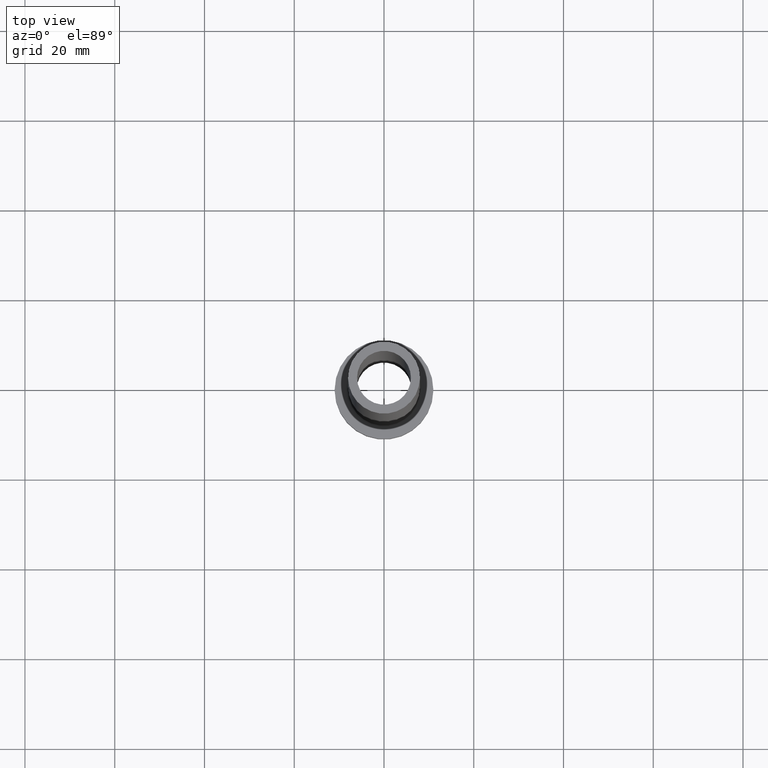
[diagram: clean part render]
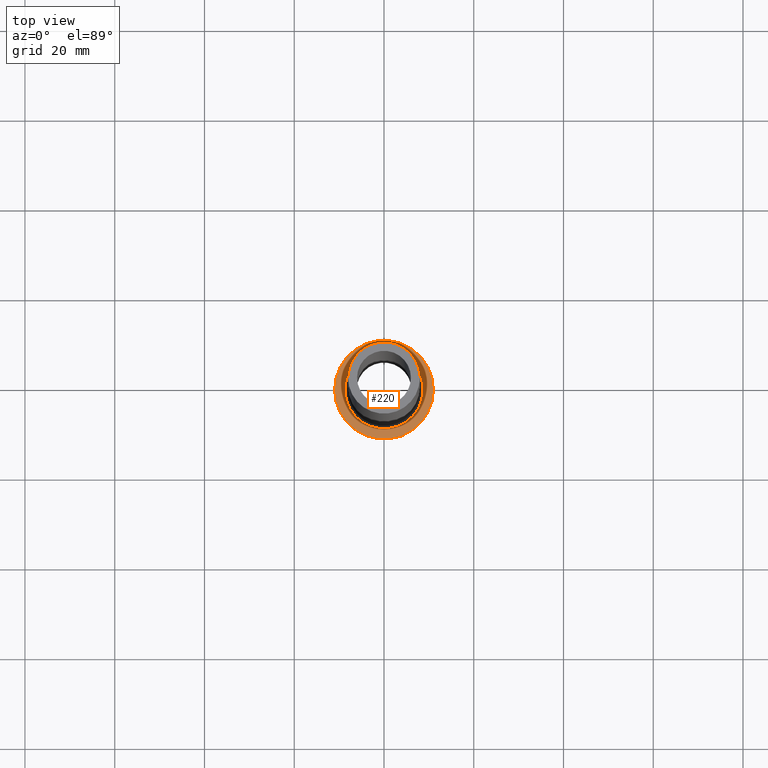
[diagram: same view with one face highlighted and labeled with its STEP entity id]
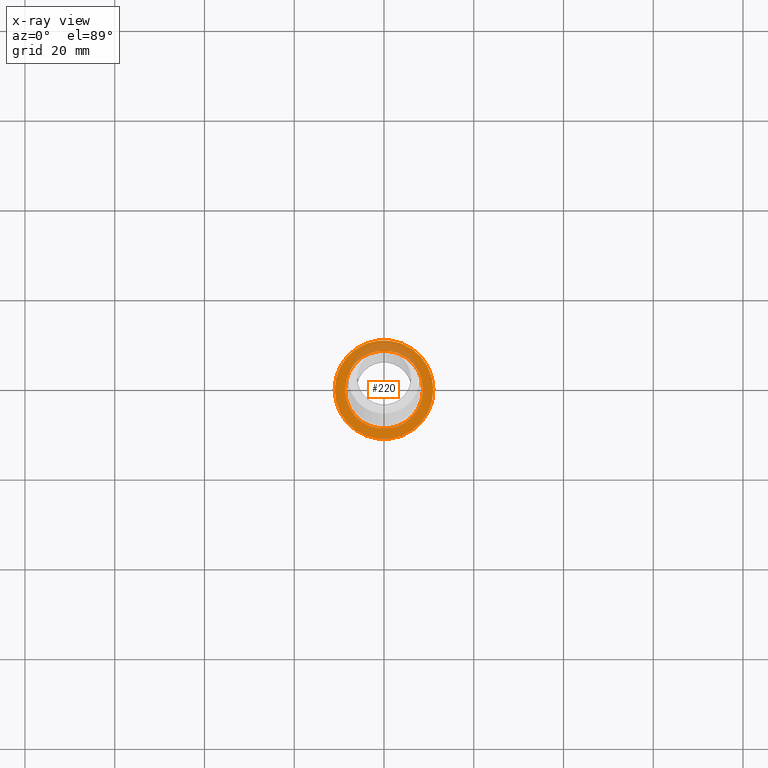
[diagram: x-ray of the same camera — body ghosted, the highlighted face saturated]
A machine part, top view. The second image highlights one B-rep face of the part: STEP entity #220.
The next image is the same camera in x-ray: the body ghosted, the highlighted face saturated — about 20% of this face is hidden behind the body in this view.
In plain terms, the highlighted planar face has unit normal (0, 0, 1).
Its self-contained STEP definition (entity closure, byte-faithful):
#5 = CARTESIAN_POINT ( 'NONE',  ( 0.000000000000000000, 0.000000000000000000, 7.000000000000000000 ) ) ;
#11 = CARTESIAN_POINT ( 'NONE',  ( 0.000000000000000000, 0.000000000000000000, 7.000000000000000000 ) ) ;
#14 = CIRCLE ( 'NONE', #71, 11.00000000000000000 ) ;
#22 = FACE_BOUND ( 'NONE', #317, .T. ) ;
#30 = EDGE_CURVE ( 'NONE', #401, #36, #77, .T. ) ;
#36 = VERTEX_POINT ( 'NONE', #369 ) ;
#39 = VERTEX_POINT ( 'NONE', #222 ) ;
#48 = DIRECTION ( 'NONE',  ( 1.000000000000000000, 0.000000000000000000, 0.000000000000000000 ) ) ;
#50 = EDGE_CURVE ( 'NONE', #39, #177, #172, .T. ) ;
#52 = DIRECTION ( 'NONE',  ( 1.000000000000000000, 0.000000000000000000, 0.000000000000000000 ) ) ;
#71 = AXIS2_PLACEMENT_3D ( 'NONE', #417, #348, #52 ) ;
#77 = CIRCLE ( 'NONE', #352, 8.699999999999999289 ) ;
#114 = CARTESIAN_POINT ( 'NONE',  ( 8.699999999999999289, 0.000000000000000000, 7.000000000000006217 ) ) ;
#139 = EDGE_CURVE ( 'NONE', #177, #39, #14, .T. ) ;
#154 = DIRECTION ( 'NONE',  ( 0.000000000000000000, 0.000000000000000000, 1.000000000000000000 ) ) ;
#172 = CIRCLE ( 'NONE', #343, 11.00000000000000000 ) ;
#174 = DIRECTION ( 'NONE',  ( 0.000000000000000000, 0.000000000000000000, 1.000000000000000000 ) ) ;
#177 = VERTEX_POINT ( 'NONE', #203 ) ;
#182 = DIRECTION ( 'NONE',  ( 1.000000000000000000, 0.000000000000000000, -0.000000000000000000 ) ) ;
#193 = DIRECTION ( 'NONE',  ( 1.000000000000000000, 0.000000000000000000, 0.000000000000000000 ) ) ;
#195 = AXIS2_PLACEMENT_3D ( 'NONE', #5, #174, #182 ) ;
#203 = CARTESIAN_POINT ( 'NONE',  ( 11.00000000000000000, 1.347111479062088405E-15, 7.000000000000000000 ) ) ;
#212 = ORIENTED_EDGE ( 'NONE', *, *, #381, .T. ) ;
#220 = ADVANCED_FACE ( 'NONE', ( #22, #308 ), #388, .T. ) ;
#222 = CARTESIAN_POINT ( 'NONE',  ( -11.00000000000000000, 0.000000000000000000, 7.000000000000000000 ) ) ;
#226 = DIRECTION ( 'NONE',  ( 1.000000000000000000, 0.000000000000000000, 0.000000000000000000 ) ) ;
#227 = CARTESIAN_POINT ( 'NONE',  ( 0.000000000000000000, 0.000000000000000000, 7.000000000000000000 ) ) ;
#244 = ORIENTED_EDGE ( 'NONE', *, *, #139, .T. ) ;
#265 = CIRCLE ( 'NONE', #428, 8.699999999999999289 ) ;
#289 = ORIENTED_EDGE ( 'NONE', *, *, #30, .T. ) ;
#290 = EDGE_LOOP ( 'NONE', ( #459, #244 ) ) ;
#291 = DIRECTION ( 'NONE',  ( -0.000000000000000000, -0.000000000000000000, -1.000000000000000000 ) ) ;
#293 = DIRECTION ( 'NONE',  ( -0.000000000000000000, -0.000000000000000000, -1.000000000000000000 ) ) ;
#308 = FACE_OUTER_BOUND ( 'NONE', #290, .T. ) ;
#317 = EDGE_LOOP ( 'NONE', ( #289, #212 ) ) ;
#343 = AXIS2_PLACEMENT_3D ( 'NONE', #11, #154, #48 ) ;
#348 = DIRECTION ( 'NONE',  ( 0.000000000000000000, 0.000000000000000000, 1.000000000000000000 ) ) ;
#352 = AXIS2_PLACEMENT_3D ( 'NONE', #371, #293, #226 ) ;
#369 = CARTESIAN_POINT ( 'NONE',  ( -8.699999999999999289, 1.065442715258197248E-15, 7.000000000000006217 ) ) ;
#371 = CARTESIAN_POINT ( 'NONE',  ( 0.000000000000000000, 0.000000000000000000, 7.000000000000000000 ) ) ;
#381 = EDGE_CURVE ( 'NONE', #36, #401, #265, .T. ) ;
#388 = PLANE ( 'NONE',  #195 ) ;
#401 = VERTEX_POINT ( 'NONE', #114 ) ;
#417 = CARTESIAN_POINT ( 'NONE',  ( 0.000000000000000000, 0.000000000000000000, 7.000000000000000000 ) ) ;
#428 = AXIS2_PLACEMENT_3D ( 'NONE', #227, #291, #193 ) ;
#459 = ORIENTED_EDGE ( 'NONE', *, *, #50, .T. ) ;